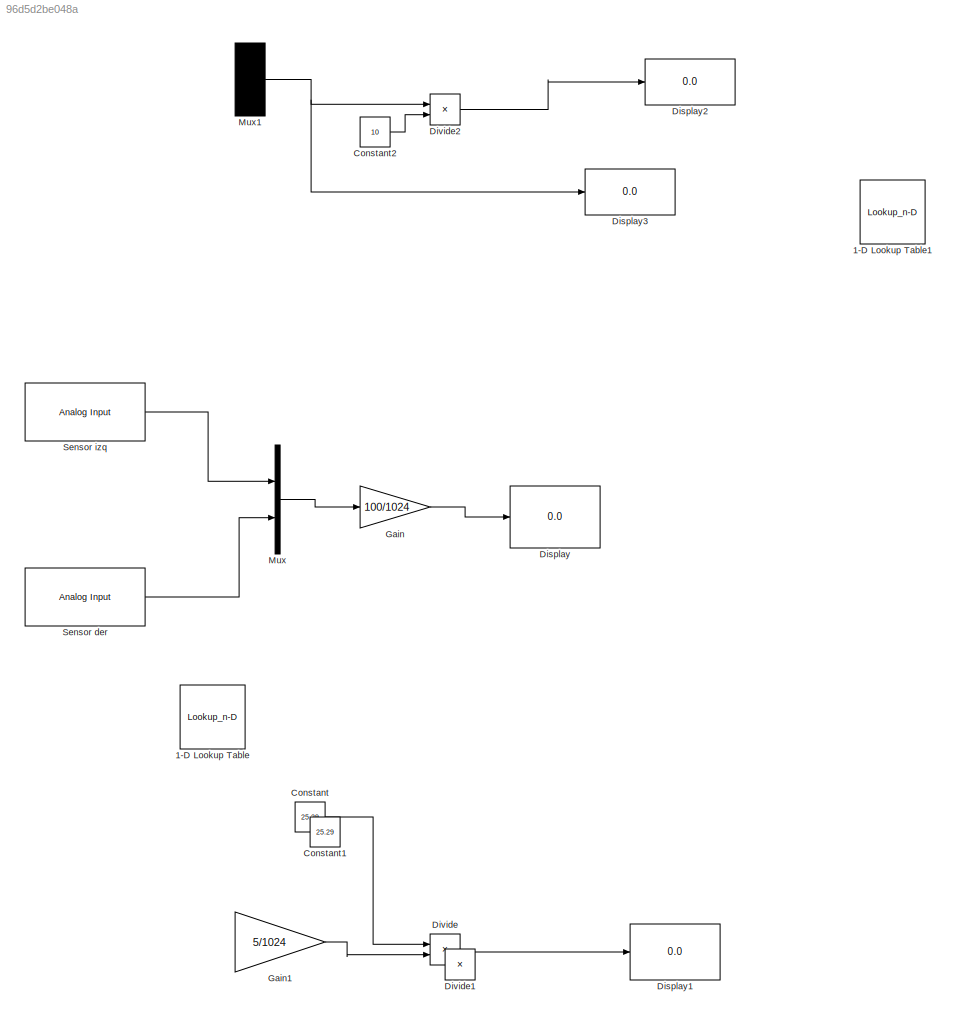
MODEL slx_96d5d2be048a
KIND model
CONFIG AbsTol = auto
CONFIG EnableMultiTasking = on
CONFIG FixedStep = auto
CONFIG MaxStep = auto
CONFIG MinStep = auto
CONFIG RelTol = 1e-3
CONFIG SampleTimeConstraint = Unconstrained
CONFIG SolverName = FixedStepAuto
CONFIG StartTime = 0.0
CONFIG StopTime = inf
BLOCK [Lookup_n-D] 1-D Lookup Table
  BreakpointsForDimension1 = [-5:5]
  InputPortMap = u0
  InternalRulePriority = Speed
  NumberOfTableDimensions = 1
  RndMeth = Simplest
  Table = tanh([-5:5])
BLOCK [Lookup_n-D] 1-D Lookup Table1
  BreakpointsForDimension1 = [121;133;158;197;217;240;266;306]
  BreakpointsForDimension1DataTypeStr = double
  ExtrapMethod = Clip
  InputPortMap = u0
  InternalRulePriority = Speed
  NumberOfTableDimensions = 1
  OutDataTypeStr = double
  RndMeth = Simplest
  Table = [60;50;40;30;27;24;21;18]
  TableDataTypeStr = double
BLOCK [Constant] Constant
  Value = 25.29
BLOCK [Constant] Constant1
  Value = 25.29
BLOCK [Constant] Constant2
  Value = 10
BLOCK [Display] Display
  Decimation = 1
BLOCK [Display] Display1
  Decimation = 1
BLOCK [Display] Display2
  Decimation = 1
BLOCK [Display] Display3
  Decimation = 1
BLOCK [Product] Divide
  Inputs = */
BLOCK [Product] Divide1
  Inputs = */
BLOCK [Product] Divide2
  Inputs = */
BLOCK [Gain] Gain
  Gain = 100/1024
BLOCK [Gain] Gain1
  Gain = 5/1024
BLOCK [Mux] Mux
  DisplayOption = bar
  Inputs = 2
BLOCK [Mux] Mux1
  DisplayOption = bar
  Inputs = 2
BLOCK [Reference] Sensor der  REF=arduinolib/Analog Input
  SourceBlock = arduinolib/Analog Input
  SourceType = Arduino Analog Input
BLOCK [Reference] Sensor izq  REF=arduinolib/Analog Input
  SourceBlock = arduinolib/Analog Input
  SourceType = Arduino Analog Input
LINE Constant2:1 -> Divide2:2
LINE Constant:1 -> Divide:1
LINE Divide2:1 -> Display2:1
LINE Divide:1 -> Display1:1
LINE Gain1:1 -> Divide:2
LINE Gain:1 -> Display:1
NET Mux1:1 -> Display3:1, Divide2:1
LINE Mux:1 -> Gain:1
LINE Sensor der:1 -> Mux:2
LINE Sensor izq:1 -> Mux:1
note: NET lines group one-source signal fan-out (src -> all destinations, sorted); 1:1 wires keep LINE
